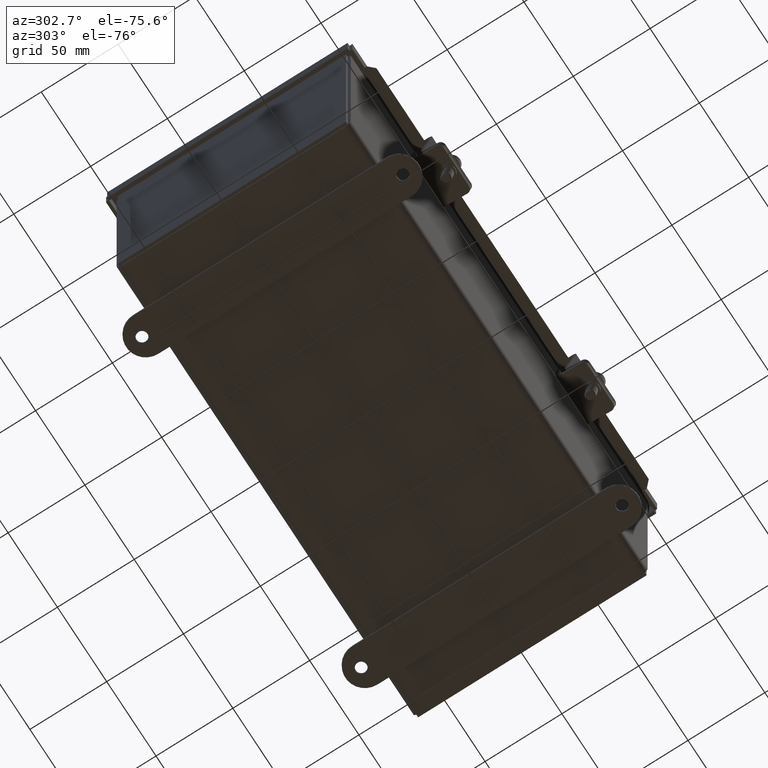
[diagram: clean part render]
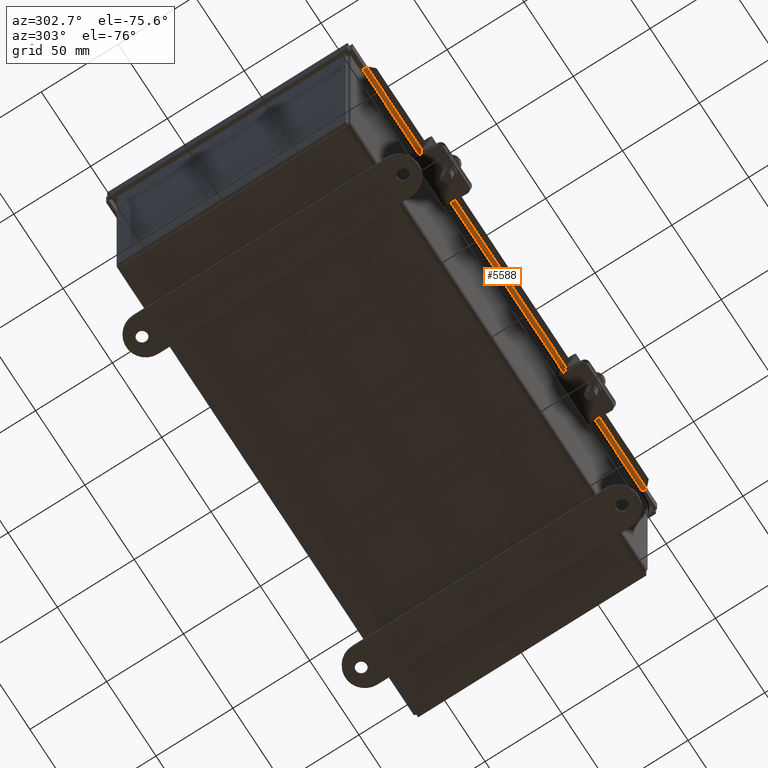
[diagram: same view with one face highlighted and labeled with its STEP entity id]
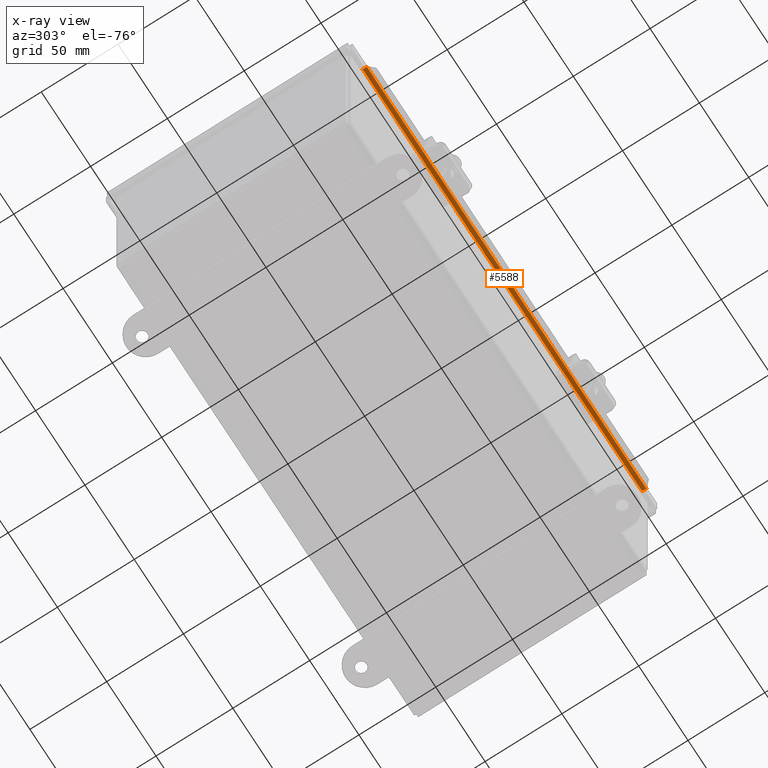
[diagram: x-ray of the same camera — body ghosted, the highlighted face saturated]
A machine part, auxiliary view. The second image highlights one B-rep face of the part: STEP entity #5588.
The next image is the same camera in x-ray: the body ghosted, the highlighted face saturated — about 0% of this face is hidden behind the body in this view.
In plain terms, the highlighted cylindrical surface (edge-blend (fillet) strip) has radius 2.6734 mm, axis along (-1, -0, 0).
Its self-contained STEP definition (entity closure, byte-faithful):
#591=FACE_OUTER_BOUND('',#939,.T.);
#939=EDGE_LOOP('',(#4613,#4614,#4615,#4616));
#1167=CIRCLE('',#6212,0.105250000000006);
#1168=CIRCLE('',#6213,0.105249999999999);
#1617=LINE('',#8989,#2185);
#1618=LINE('',#8993,#2186);
#2185=VECTOR('',#7428,0.393700787401575);
#2186=VECTOR('',#7431,0.393700787401575);
#2687=VERTEX_POINT('',#8984);
#2688=VERTEX_POINT('',#8988);
#2689=VERTEX_POINT('',#8990);
#2690=VERTEX_POINT('',#8992);
#3351=EDGE_CURVE('',#2687,#2688,#1617,.T.);
#3352=EDGE_CURVE('',#2689,#2687,#1167,.T.);
#3353=EDGE_CURVE('',#2690,#2689,#1618,.T.);
#3354=EDGE_CURVE('',#2688,#2690,#1168,.T.);
#4613=ORIENTED_EDGE('',*,*,#3351,.F.);
#4614=ORIENTED_EDGE('',*,*,#3352,.F.);
#4615=ORIENTED_EDGE('',*,*,#3353,.F.);
#4616=ORIENTED_EDGE('',*,*,#3354,.F.);
#5172=CYLINDRICAL_SURFACE('',#6211,0.105250000000004);
#5588=ADVANCED_FACE('',(#591),#5172,.T.);
#6211=AXIS2_PLACEMENT_3D('',#8987,#7426,#7427);
#6212=AXIS2_PLACEMENT_3D('',#8991,#7429,#7430);
#6213=AXIS2_PLACEMENT_3D('',#8994,#7432,#7433);
#7426=DIRECTION('center_axis',(-1.,-1.11983625283091E-16,-1.39549534272152E-18));
#7427=DIRECTION('ref_axis',(0.,0.173648177666938,0.984807753012207));
#7428=DIRECTION('',(1.,3.24970494797056E-17,-4.49395276914658E-16));
#7429=DIRECTION('center_axis',(-1.,-1.11983625283091E-16,-1.39549534272152E-18));
#7430=DIRECTION('ref_axis',(0.,-1.,5.73104073160128E-14));
#7431=DIRECTION('',(-1.,-1.14794414017127E-16,9.92612159246845E-32));
#7432=DIRECTION('center_axis',(1.,1.11983625283091E-16,1.39549534272152E-18));
#7433=DIRECTION('ref_axis',(0.,0.173648177666946,0.984807753012205));
#8984=CARTESIAN_POINT('',(0.574707106781185,6.36202647069944,0.55840101600454));
#8987=CARTESIAN_POINT('Origin',(0.574707106781185,6.34375,0.45475));
#8988=CARTESIAN_POINT('',(11.7377928932188,6.36202647069944,0.558401016004534));
#8989=CARTESIAN_POINT('',(6.15625,6.36202647069944,0.558401016004536));
#8990=CARTESIAN_POINT('',(0.574707106781184,6.2385,0.454749999999999));
#8991=CARTESIAN_POINT('Origin',(0.574707106781185,6.34375,0.45475));
#8992=CARTESIAN_POINT('',(11.7377928932188,6.2385,0.454749999999999));
#8993=CARTESIAN_POINT('',(8.9470214466094,6.2385,0.454749999999999));
#8994=CARTESIAN_POINT('Origin',(11.7377928932188,6.34375,0.45475));